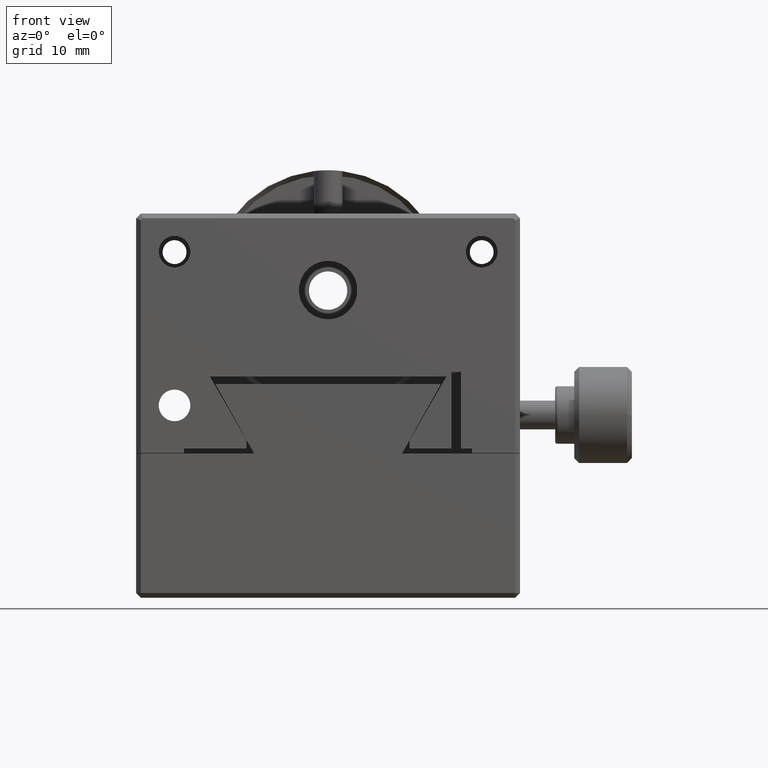
[diagram: clean part render]
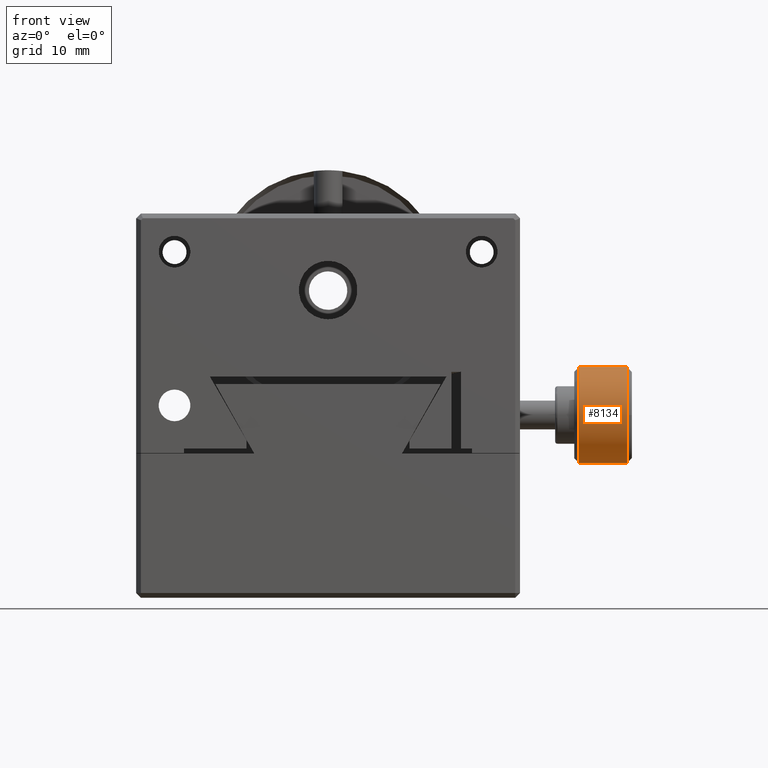
[diagram: same view with one face highlighted and labeled with its STEP entity id]
A machine part, front view. The second image highlights one B-rep face of the part: STEP entity #8134.
In plain terms, the highlighted cylindrical surface (partial cylindrical patch) has radius 5 mm, axis along (1, 0, 0).
Its self-contained STEP definition (entity closure, byte-faithful):
#65 = CARTESIAN_POINT ( 'NONE',  ( 26.15000000000000568, -17.50000000000000355, -16.00000000000001066 ) ) ;
#259 = DIRECTION ( 'NONE',  ( 1.000000000000000000, 0.000000000000000000, 0.000000000000000000 ) ) ;
#1212 = EDGE_CURVE ( 'NONE', #11398, #9315, #4823, .T. ) ;
#1687 = CARTESIAN_POINT ( 'NONE',  ( 31.65000000000000568, -17.50000000000000355, -21.00000000000001066 ) ) ;
#1988 = LINE ( 'NONE', #10254, #7483 ) ;
#2419 = AXIS2_PLACEMENT_3D ( 'NONE', #4104, #8595, #9686 ) ;
#2678 = CARTESIAN_POINT ( 'NONE',  ( 31.15000000000000924, -17.50000000000000355, -21.00000000000001066 ) ) ;
#2904 = DIRECTION ( 'NONE',  ( 1.000000000000000000, 0.000000000000000000, 0.000000000000000000 ) ) ;
#3216 = ORIENTED_EDGE ( 'NONE', *, *, #5032, .F. ) ;
#3545 = VERTEX_POINT ( 'NONE', #6058 ) ;
#4104 = CARTESIAN_POINT ( 'NONE',  ( 31.15000000000000924, -17.50000000000000355, -21.00000000000001066 ) ) ;
#4602 = VERTEX_POINT ( 'NONE', #6360 ) ;
#4823 = CIRCLE ( 'NONE', #5806, 5.000000000000000888 ) ;
#4898 = VERTEX_POINT ( 'NONE', #7203 ) ;
#5032 = EDGE_CURVE ( 'NONE', #7315, #3545, #1988, .T. ) ;
#5348 = CARTESIAN_POINT ( 'NONE',  ( 26.15000000000000568, -17.50000000000000355, -21.00000000000001066 ) ) ;
#5426 = DIRECTION ( 'NONE',  ( 1.000000000000000000, 0.000000000000000000, 0.000000000000000000 ) ) ;
#5806 = AXIS2_PLACEMENT_3D ( 'NONE', #5348, #10742, #9088 ) ;
#6022 = ORIENTED_EDGE ( 'NONE', *, *, #9355, .T. ) ;
#6058 = CARTESIAN_POINT ( 'NONE',  ( 31.15000000000000924, -17.50000000000000355, -16.00000000000001066 ) ) ;
#6157 = AXIS2_PLACEMENT_3D ( 'NONE', #1687, #5426, #8251 ) ;
#6360 = CARTESIAN_POINT ( 'NONE',  ( 31.15000000000000924, -22.49999999997065103, -21.00000000000001066 ) ) ;
#6425 = DIRECTION ( 'NONE',  ( 0.000000000000000000, 0.000000000000000000, -1.000000000000000000 ) ) ;
#7203 = CARTESIAN_POINT ( 'NONE',  ( 31.15000000000000924, -17.50000000000000355, -26.00000000000001421 ) ) ;
#7315 = VERTEX_POINT ( 'NONE', #65 ) ;
#7458 = DIRECTION ( 'NONE',  ( -1.000000000000000000, -0.000000000000000000, -0.000000000000000000 ) ) ;
#7468 = EDGE_CURVE ( 'NONE', #4898, #4602, #7915, .T. ) ;
#7483 = VECTOR ( 'NONE', #2904, 1000.000000000000000 ) ;
#7572 = ORIENTED_EDGE ( 'NONE', *, *, #10956, .T. ) ;
#7609 = CARTESIAN_POINT ( 'NONE',  ( 26.15000000006487113, -20.81439233073145090, -17.25636493784847048 ) ) ;
#7915 = CIRCLE ( 'NONE', #2419, 5.000000000000000888 ) ;
#7938 = AXIS2_PLACEMENT_3D ( 'NONE', #11253, #10208, #11974 ) ;
#8134 = ADVANCED_FACE ( 'NONE', ( #9223 ), #10082, .T. ) ;
#8146 = VECTOR ( 'NONE', #259, 1000.000000000000000 ) ;
#8251 = DIRECTION ( 'NONE',  ( 0.000000000000000000, 0.000000000000000000, -1.000000000000000000 ) ) ;
#8595 = DIRECTION ( 'NONE',  ( -1.000000000000000000, -0.000000000000000000, -0.000000000000000000 ) ) ;
#8667 = CARTESIAN_POINT ( 'NONE',  ( 31.65000000000000568, -17.50000000000000355, -26.00000000000001421 ) ) ;
#9088 = DIRECTION ( 'NONE',  ( 0.000000000000000000, 0.000000000000000000, -1.000000000000000000 ) ) ;
#9124 = ORIENTED_EDGE ( 'NONE', *, *, #1212, .T. ) ;
#9223 = FACE_OUTER_BOUND ( 'NONE', #11213, .T. ) ;
#9303 = EDGE_CURVE ( 'NONE', #4602, #3545, #9882, .T. ) ;
#9315 = VERTEX_POINT ( 'NONE', #11125 ) ;
#9355 = EDGE_CURVE ( 'NONE', #7315, #11398, #11441, .T. ) ;
#9583 = LINE ( 'NONE', #8667, #8146 ) ;
#9686 = DIRECTION ( 'NONE',  ( 0.000000000000000000, 0.000000000000000000, -1.000000000000000000 ) ) ;
#9882 = CIRCLE ( 'NONE', #10856, 5.000000000000000888 ) ;
#10006 = ORIENTED_EDGE ( 'NONE', *, *, #9303, .T. ) ;
#10082 = CYLINDRICAL_SURFACE ( 'NONE', #6157, 5.000000000000000888 ) ;
#10208 = DIRECTION ( 'NONE',  ( 1.000000000000000000, 0.000000000000000000, 0.000000000000000000 ) ) ;
#10254 = CARTESIAN_POINT ( 'NONE',  ( 31.65000000000000568, -17.50000000000000355, -16.00000000000001066 ) ) ;
#10742 = DIRECTION ( 'NONE',  ( 1.000000000000000000, 0.000000000000000000, 0.000000000000000000 ) ) ;
#10856 = AXIS2_PLACEMENT_3D ( 'NONE', #2678, #7458, #6425 ) ;
#10956 = EDGE_CURVE ( 'NONE', #9315, #4898, #9583, .T. ) ;
#11125 = CARTESIAN_POINT ( 'NONE',  ( 26.15000000000000568, -17.50000000000000355, -26.00000000000001421 ) ) ;
#11213 = EDGE_LOOP ( 'NONE', ( #3216, #6022, #9124, #7572, #11734, #10006 ) ) ;
#11253 = CARTESIAN_POINT ( 'NONE',  ( 26.15000000000000568, -17.50000000000000355, -21.00000000000001066 ) ) ;
#11398 = VERTEX_POINT ( 'NONE', #7609 ) ;
#11441 = CIRCLE ( 'NONE', #7938, 5.000000000000000888 ) ;
#11734 = ORIENTED_EDGE ( 'NONE', *, *, #7468, .T. ) ;
#11974 = DIRECTION ( 'NONE',  ( 0.000000000000000000, 0.000000000000000000, -1.000000000000000000 ) ) ;